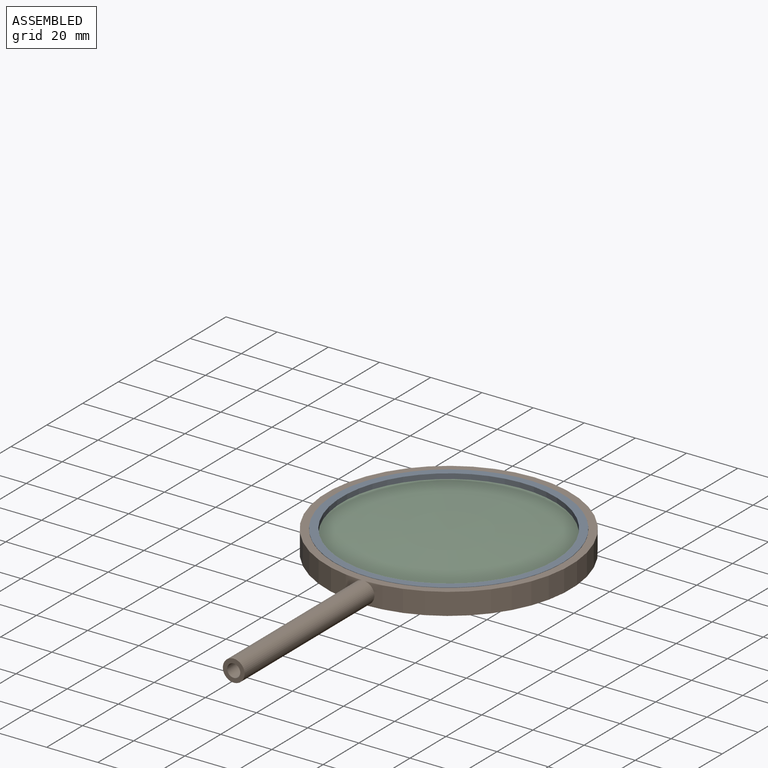
[diagram: assembled view]
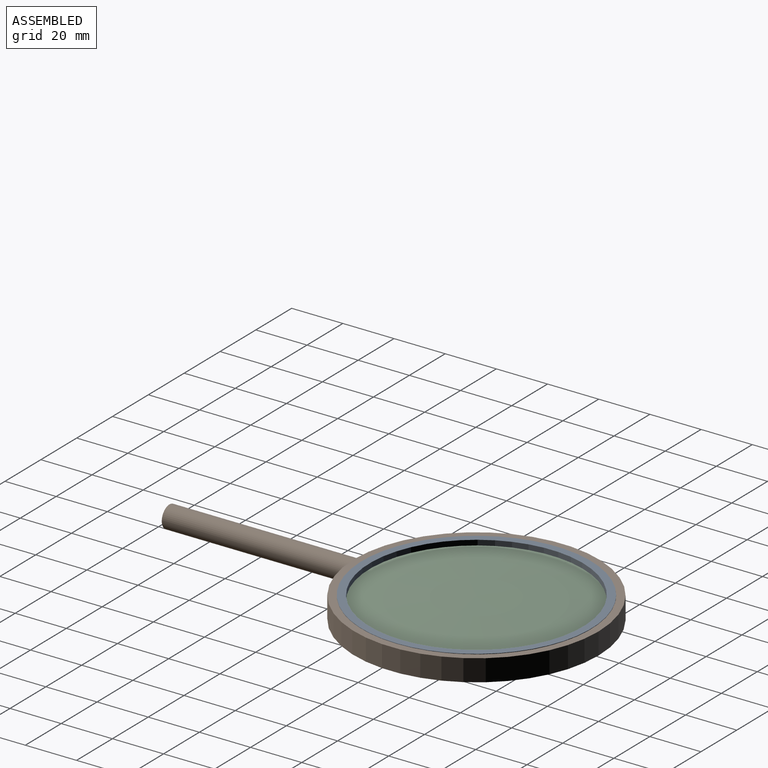
[diagram: assembled view, second angle]
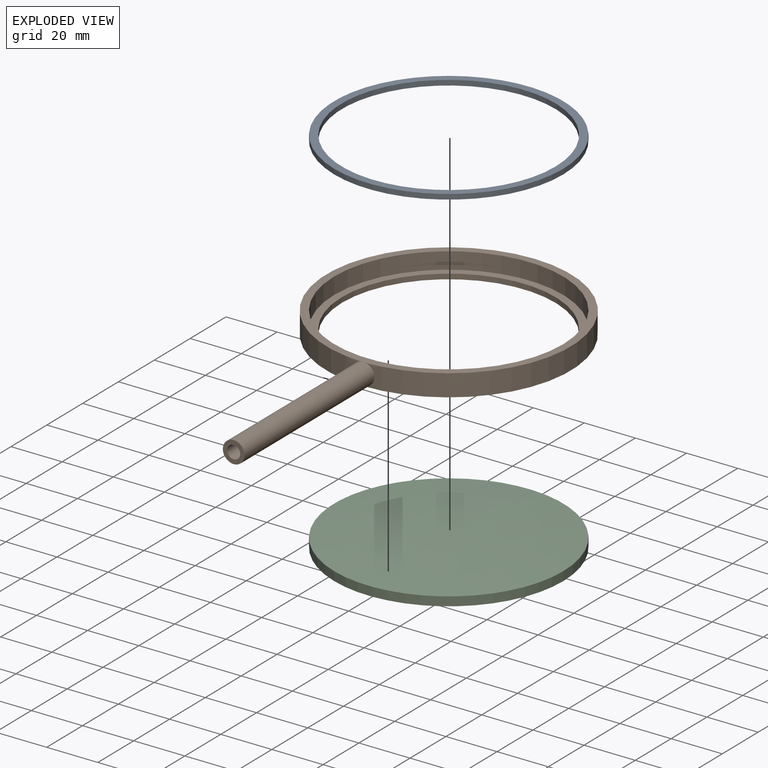
[diagram: exploded view]
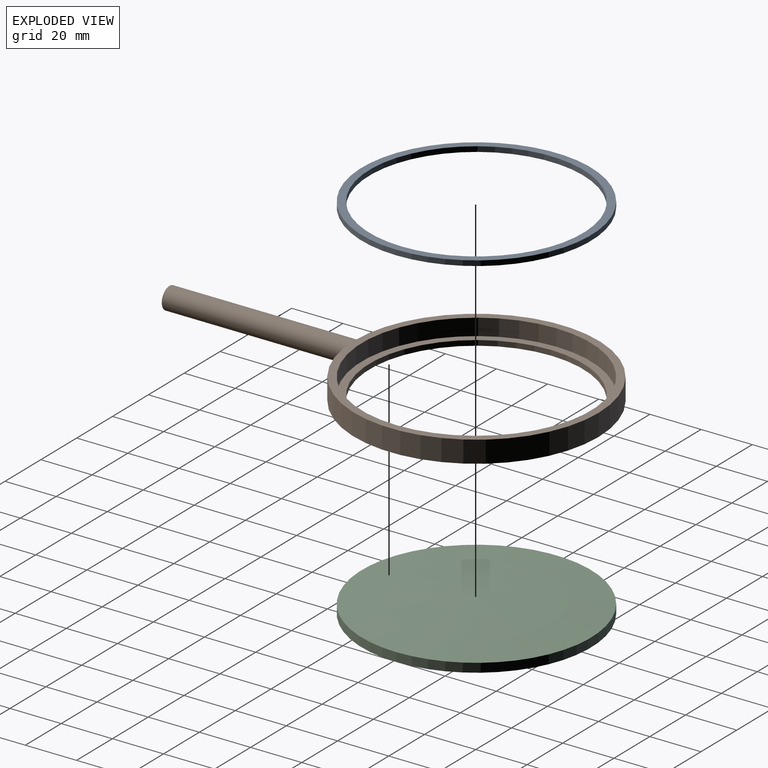
[diagram: exploded view, second angle]
ASSEMBLY  parts=3 mates=2
PART A: 4 faces, bbox 89.5x89.5x2 mm
  f0: cylinder r=41.75mm len=83.5mm, axis (0,0,-1), area 524.6mm2, adj f2,f3
  f1: cylinder r=44.75mm len=89.5mm, axis (0,0,-1), area 562.3mm2, adj f2,f3
  f2: plane 89.5x89.5mm, normal (0,0,1), area 815.2mm2, adj f0,f1
  f3: plane 89.5x89.5mm, normal (0,0,-1), area 815.2mm2, adj f0,f1
PART B: 10 faces, bbox 95.5x167.8x8.5 mm
  f0: plane 89.5x89.5mm, normal (0,0,1), area 815.2mm2, adj f1,f4
  f1: cylinder r=41.75mm len=83.5mm, axis (0,0,1), area 524.6mm2, adj f0,f3
  f2: cylinder r=47.75mm len=95.5mm, axis (0,0,1), area 2493.4mm2, adj f3,f5,f7
  f3: plane 95.5x95.5mm, normal (0,0,-1), area 1687mm2, adj f1,f2
  f4: cylinder r=44.75mm len=89.5mm, axis (0,0,-1), area 1827.6mm2, adj f0,f5
  f5: plane 95.5x95.5mm, normal (0,0,1), area 871.8mm2, adj f2,f4
  f6: plane 8.5x8.5mm, normal (0,-1,0), area 36.3mm2, adj f7,f8
  f7: cylinder r=4.25mm len=72.44mm, axis (0,-1,0), area 1931.9mm2, adj f2,f6
  f8: cylinder r=2.55mm len=72.32mm, axis (0,-1,0), area 1158.1mm2, adj f6,f9
  f9: cylinder r=47.75mm len=5.1mm, axis (0,0,1), area 20.4mm2, adj f8
PART C: 3 faces, bbox 89.5x89.5x8.9 mm
  f0: cylinder r=44.75mm len=89.5mm, axis (0,0,1), area 984.1mm2, adj f1,f2
  f1: sphere r=370.74mm, area 6314.3mm2, adj f0
  f2: sphere r=370.74mm, area 6314.3mm2, adj f0
PLACE A t=(-34.56,-31.93,1.07)mm
PLACE B t=(-34.56,-31.93,-3.58)mm
PLACE C t=(-34.56,-31.93,-1.83)mm
MATE slider A.f0 <-> C.f0  axis (0,0,-1) through (-34.56,-31.93,1.07)mm
MATE slider C.f0 <-> B.f4  axis (0,0,1) through (-34.56,-31.93,-3.58)mm
